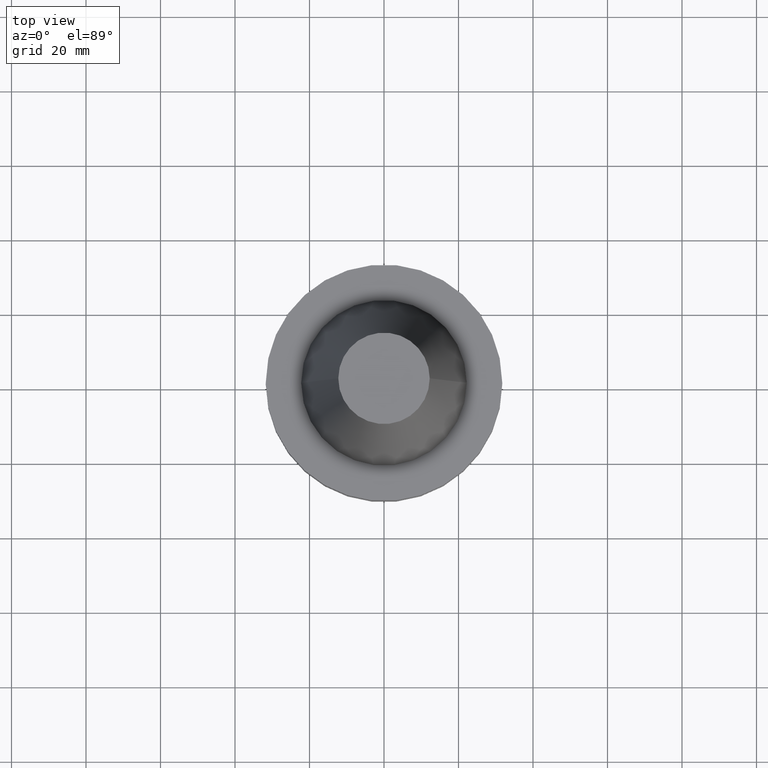
[diagram: clean part render]
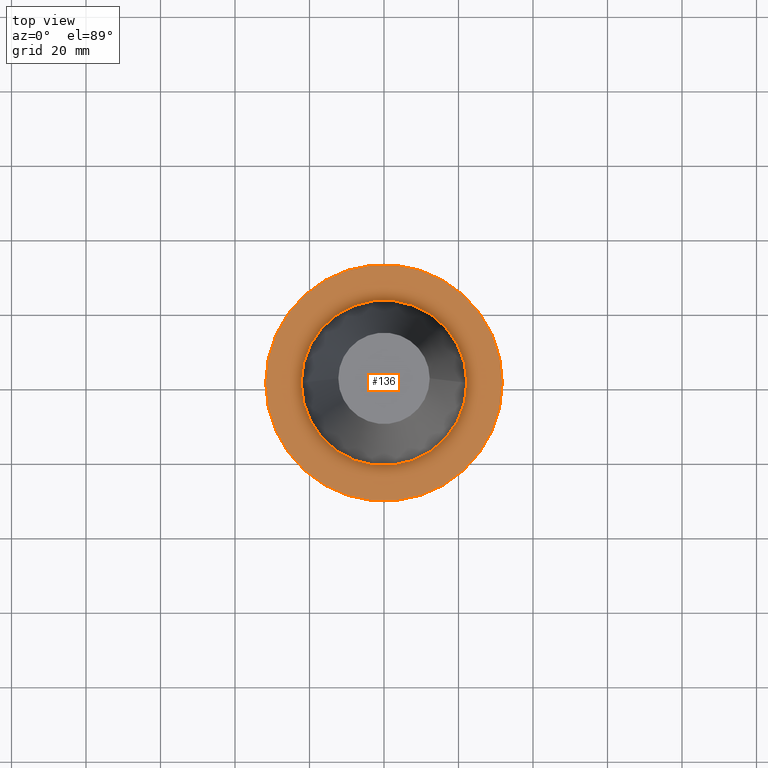
[diagram: same view with one face highlighted and labeled with its STEP entity id]
A machine part, top view. The second image highlights one B-rep face of the part: STEP entity #136.
In plain terms, the highlighted planar face has unit normal (0, 0, -1).
Its self-contained STEP definition (entity closure, byte-faithful):
#24 = VERTEX_POINT ( 'NONE', #199 ) ;
#49 = EDGE_CURVE ( 'NONE', #24, #255, #1062, .T. ) ;
#66 = DIRECTION ( 'NONE',  ( -1.000000000000000000, 0.000000000000000000, -0.000000000000000000 ) ) ;
#83 = ORIENTED_EDGE ( 'NONE', *, *, #879, .T. ) ;
#87 = PLANE ( 'NONE',  #867 ) ;
#93 = ORIENTED_EDGE ( 'NONE', *, *, #119, .T. ) ;
#111 = EDGE_LOOP ( 'NONE', ( #305, #187 ) ) ;
#114 = DIRECTION ( 'NONE',  ( 1.000000000000000000, 0.000000000000000000, 0.000000000000000000 ) ) ;
#119 = EDGE_CURVE ( 'NONE', #959, #790, #470, .T. ) ;
#136 = ADVANCED_FACE ( 'NONE', ( #910, #587 ), #87, .F. ) ;
#167 = DIRECTION ( 'NONE',  ( -0.000000000000000000, -0.000000000000000000, 1.000000000000000000 ) ) ;
#187 = ORIENTED_EDGE ( 'NONE', *, *, #994, .F. ) ;
#196 = DIRECTION ( 'NONE',  ( -0.000000000000000000, -0.000000000000000000, 1.000000000000000000 ) ) ;
#199 = CARTESIAN_POINT ( 'NONE',  ( 22.22500000000000142, 0.000000000000000000, -1.000000000000000888 ) ) ;
#255 = VERTEX_POINT ( 'NONE', #265 ) ;
#265 = CARTESIAN_POINT ( 'NONE',  ( -22.22500000000000142, 2.721777511104992849E-15, -1.000000000000000888 ) ) ;
#302 = CARTESIAN_POINT ( 'NONE',  ( -31.75000000000000000, 3.888253587292846476E-15, -1.000000000000000888 ) ) ;
#305 = ORIENTED_EDGE ( 'NONE', *, *, #49, .F. ) ;
#386 = DIRECTION ( 'NONE',  ( -0.000000000000000000, -0.000000000000000000, 1.000000000000000000 ) ) ;
#405 = DIRECTION ( 'NONE',  ( 1.000000000000000000, 0.000000000000000000, 0.000000000000000000 ) ) ;
#408 = AXIS2_PLACEMENT_3D ( 'NONE', #949, #196, #114 ) ;
#426 = DIRECTION ( 'NONE',  ( 0.000000000000000000, 0.000000000000000000, -1.000000000000000000 ) ) ;
#470 = CIRCLE ( 'NONE', #1079, 31.75000000000000000 ) ;
#501 = CARTESIAN_POINT ( 'NONE',  ( 0.000000000000000000, 31.75000000000000000, -0.9999999999999995559 ) ) ;
#587 = FACE_OUTER_BOUND ( 'NONE', #919, .T. ) ;
#625 = DIRECTION ( 'NONE',  ( 1.000000000000000000, 0.000000000000000000, 0.000000000000000000 ) ) ;
#648 = DIRECTION ( 'NONE',  ( -0.000000000000000000, -0.000000000000000000, 1.000000000000000000 ) ) ;
#736 = AXIS2_PLACEMENT_3D ( 'NONE', #746, #167, #986 ) ;
#746 = CARTESIAN_POINT ( 'NONE',  ( 0.000000000000000000, 0.000000000000000000, -1.000000000000000888 ) ) ;
#790 = VERTEX_POINT ( 'NONE', #1040 ) ;
#831 = AXIS2_PLACEMENT_3D ( 'NONE', #1055, #386, #625 ) ;
#867 = AXIS2_PLACEMENT_3D ( 'NONE', #501, #426, #66 ) ;
#879 = EDGE_CURVE ( 'NONE', #790, #959, #1011, .T. ) ;
#900 = CARTESIAN_POINT ( 'NONE',  ( 0.000000000000000000, 0.000000000000000000, -1.000000000000000888 ) ) ;
#910 = FACE_BOUND ( 'NONE', #111, .T. ) ;
#919 = EDGE_LOOP ( 'NONE', ( #83, #93 ) ) ;
#949 = CARTESIAN_POINT ( 'NONE',  ( 0.000000000000000000, 0.000000000000000000, -1.000000000000000888 ) ) ;
#959 = VERTEX_POINT ( 'NONE', #302 ) ;
#986 = DIRECTION ( 'NONE',  ( 1.000000000000000000, 0.000000000000000000, 0.000000000000000000 ) ) ;
#994 = EDGE_CURVE ( 'NONE', #255, #24, #997, .T. ) ;
#997 = CIRCLE ( 'NONE', #831, 22.22500000000000142 ) ;
#1011 = CIRCLE ( 'NONE', #408, 31.75000000000000000 ) ;
#1040 = CARTESIAN_POINT ( 'NONE',  ( 31.75000000000000000, 0.000000000000000000, -1.000000000000000888 ) ) ;
#1055 = CARTESIAN_POINT ( 'NONE',  ( 0.000000000000000000, 0.000000000000000000, -1.000000000000000888 ) ) ;
#1062 = CIRCLE ( 'NONE', #736, 22.22500000000000142 ) ;
#1079 = AXIS2_PLACEMENT_3D ( 'NONE', #900, #648, #405 ) ;